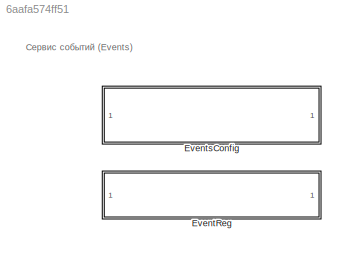
MODEL slx_6aafa574ff51
KIND library
CONFIG AbsTol = auto
CONFIG EnableMultiTasking = off
CONFIG FixedStep = auto
CONFIG MaxStep = auto
CONFIG MinStep = auto
CONFIG RelTol = 1e-3
CONFIG SampleTimeConstraint = Unconstrained
CONFIG SolverName = VariableStepAuto
CONFIG StartTime = 0.0
CONFIG StopTime = 10.0
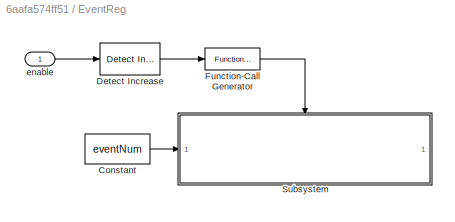
BLOCK [SubSystem] EventReg
  TreatAsAtomicUnit = on
BLOCK [Constant] EventReg/Constant
  OutDataTypeStr = uint16
  Value = eventNum
BLOCK [Reference] EventReg/Detect Increase  REF=simulink/Logic and Bit
Operations/Detect
Increase
  SourceBlock = simulink/Logic and Bit\nOperations/Detect\nIncrease
  SourceType = Detect Increase
BLOCK [Reference] EventReg/Function-Call Generator  REF=simulink/Ports &
Subsystems/Function-Call
Generator
  SourceBlock = simulink/Ports &\nSubsystems/Function-Call\nGenerator
  SourceType = Function-Call Generator
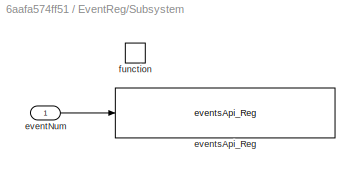
BLOCK [SubSystem] EventReg/Subsystem
BLOCK [Inport] EventReg/Subsystem/eventNum
  OutDataTypeStr = uint16
BLOCK [Reference] EventReg/Subsystem/eventsApi_Reg  REF=events_bswapi/eventsApi_Reg
  SourceBlock = events_bswapi/eventsApi_Reg
  SourceType = CCaller
BLOCK [TriggerPort] EventReg/Subsystem/function
  StatesWhenEnabling = held
  TriggerType = function-call
  VariantControl = (inherit)
BLOCK [Inport] EventReg/enable
  OutDataTypeStr = boolean
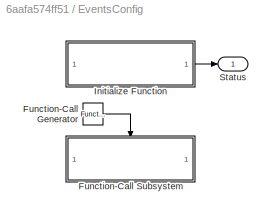
BLOCK [SubSystem] EventsConfig
  TreatAsAtomicUnit = on
BLOCK [Reference] EventsConfig/Function-Call Generator  REF=simulink/Ports &
Subsystems/Function-Call
Generator
  SourceBlock = simulink/Ports &\nSubsystems/Function-Call\nGenerator
  SourceType = Function-Call Generator
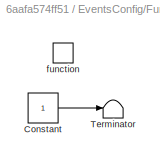
BLOCK [SubSystem] EventsConfig/Function-Call Subsystem
  TreatAsAtomicUnit = on
BLOCK [Constant] EventsConfig/Function-Call Subsystem/Constant
  OutDataTypeStr = uint8
BLOCK [Terminator] EventsConfig/Function-Call Subsystem/Terminator
BLOCK [TriggerPort] EventsConfig/Function-Call Subsystem/function
  StatesWhenEnabling = held
  TriggerType = function-call
  VariantControl = (inherit)
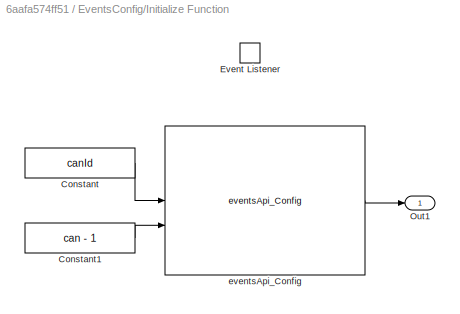
BLOCK [SubSystem] EventsConfig/Initialize Function
  TreatAsAtomicUnit = on
BLOCK [Constant] EventsConfig/Initialize Function/Constant
  OutDataTypeStr = uint32
  Value = canId
BLOCK [Constant] EventsConfig/Initialize Function/Constant1
  OutDataTypeStr = uint8
  Value = can - 1
BLOCK [EventListener] EventsConfig/Initialize Function/Event Listener
  DisableCoverage = on
  EventName = reset
BLOCK [Outport] EventsConfig/Initialize Function/Out1
BLOCK [Reference] EventsConfig/Initialize Function/eventsApi_Сonfig  REF=events_bswapi/eventsApi_Сonfig
  SourceBlock = events_bswapi/eventsApi_Сonfig
  SourceType = CCaller
BLOCK [Outport] EventsConfig/Status
ANNOTATION (root): Сервис событий (Events)
LINE EventReg/Constant:1 -> EventReg/Subsystem:1
LINE EventReg/Detect Increase:1 -> EventReg/Function-Call Generator:1
LINE EventReg/Function-Call Generator:1 -> EventReg/Subsystem:trigger
LINE EventReg/Subsystem/eventNum:1 -> EventReg/Subsystem/eventsApi_Reg:1
LINE EventReg/enable:1 -> EventReg/Detect Increase:1
LINE EventsConfig/Function-Call Generator:1 -> EventsConfig/Function-Call Subsystem:trigger
LINE EventsConfig/Function-Call Subsystem/Constant:1 -> EventsConfig/Function-Call Subsystem/Terminator:1
LINE EventsConfig/Initialize Function/Constant1:1 -> EventsConfig/Initialize Function/eventsApi_Сonfig:2
LINE EventsConfig/Initialize Function/Constant:1 -> EventsConfig/Initialize Function/eventsApi_Сonfig:1
LINE EventsConfig/Initialize Function/eventsApi_Сonfig:1 -> EventsConfig/Initialize Function/Out1:1
LINE EventsConfig/Initialize Function:1 -> EventsConfig/Status:1
